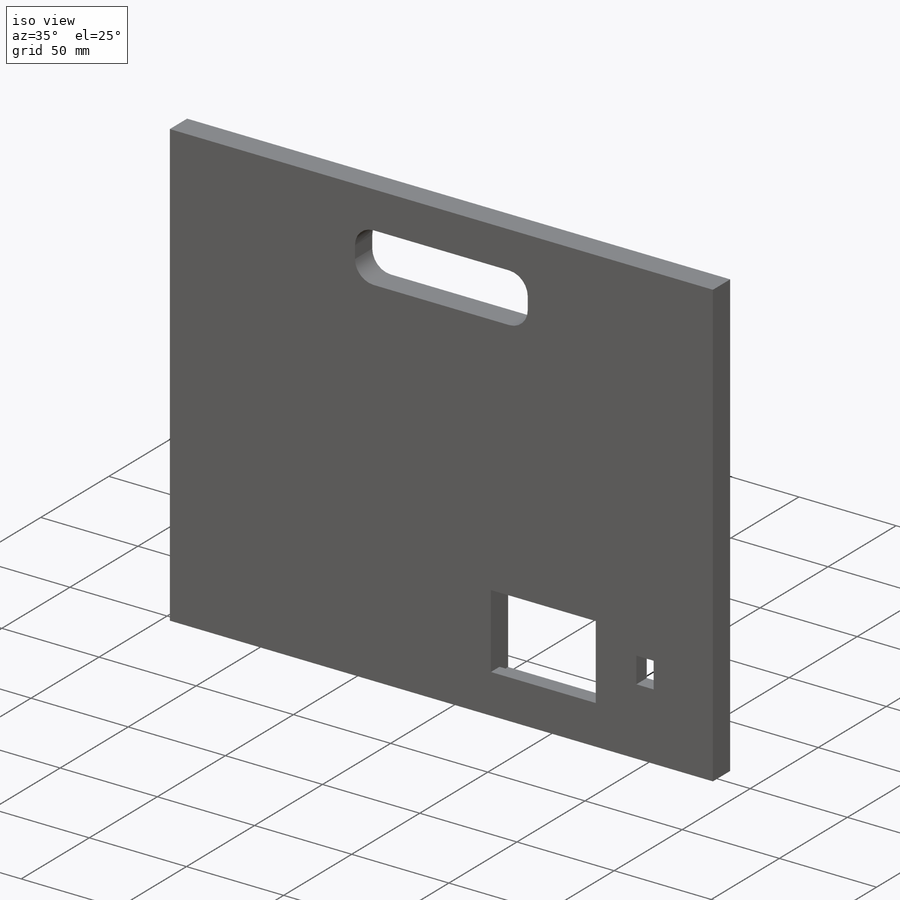
[diagram: iso view]
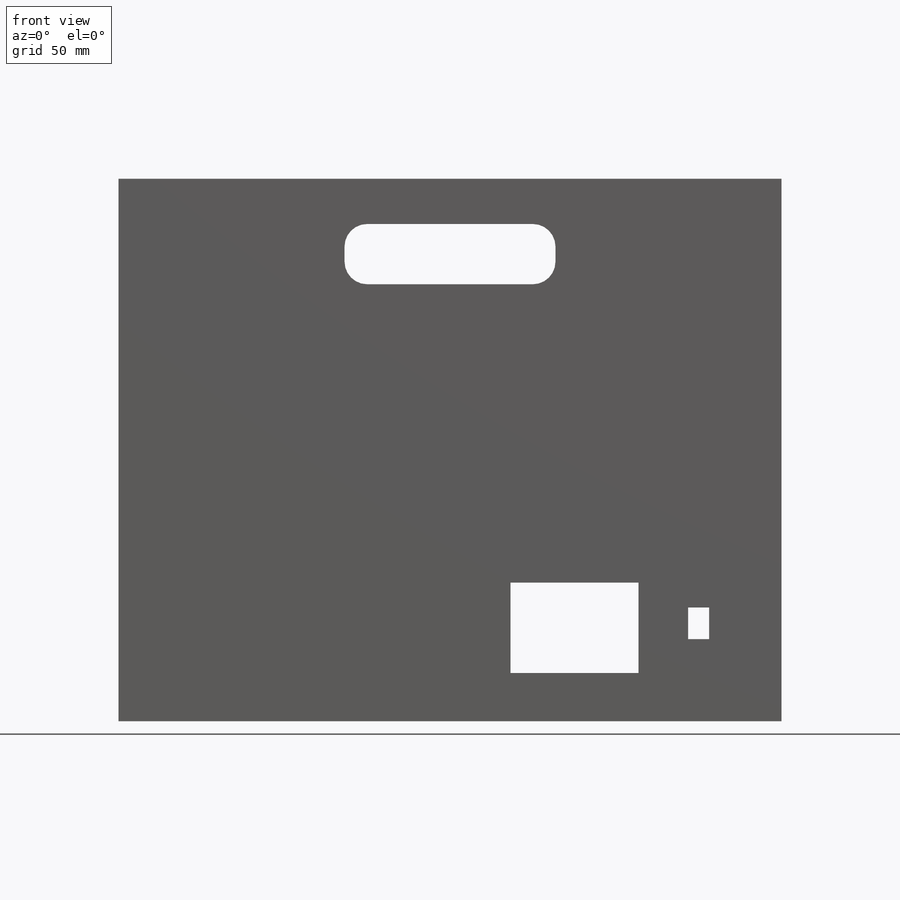
[diagram: front view]
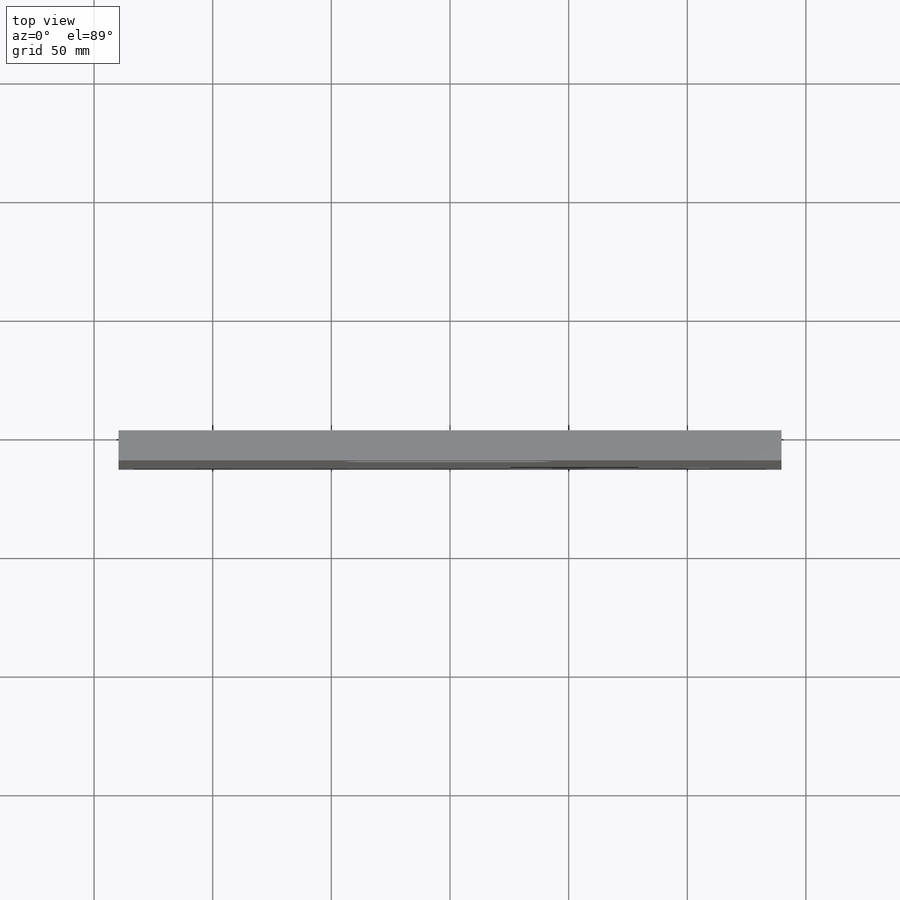
[diagram: top view]
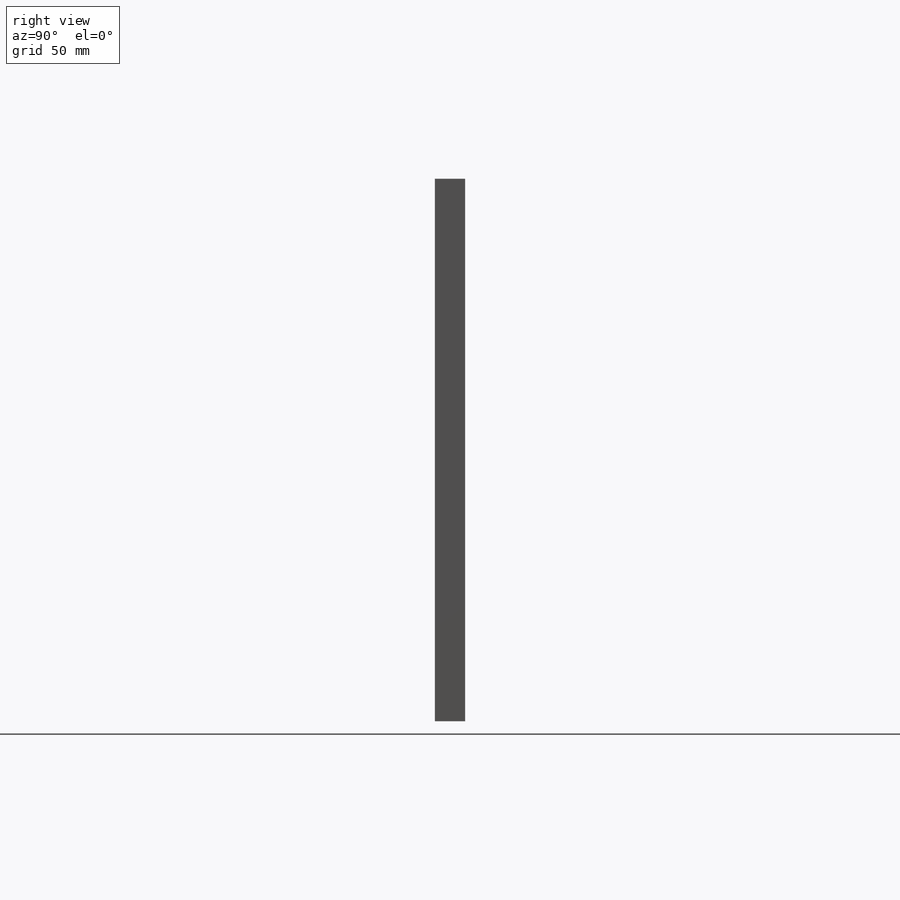
[diagram: right view]
SOLIDWORKS PART (.sldprt)
format: sldprt  version: not decoded by parser v0  size: 464,896 bytes
history: native  units: mm
features: sketch x6, cut_extrude x5, fillet x2, material x1, extrude x1 (+11 scaffold rows collapsed)
feature tree (26):
  scaffold x11  (default folders/planes/origin — collapsed)
  material  "Material <not specified>"
  sketch  "Sketch1"  dims[D1=228.6mm D2=279.4mm]
  extrude  "Boss-Extrude1"  Depth=12.7mm
  sketch  "Sketch2"  dims[c1.D8=~62.815264mm c1.D10=~63.705872mm c1.D11=9.525mm c1.D7=88.9mm c1.D1=44.45mm c1.D2=19.05mm c1.D3=88.9mm c1.D4=25.4mm c1.D5=146.05mm c1.D6=~72.953092mm c2.D6=90.0deg c3.D6=76.2mm c3.D7=28.575mm c3.D8=50.8mm c3.D9=38.1mm c3.D10=50.8mm c3.D5=139.7mm c4.D6=38.1mm c4.D7=82.55mm c4.D8=~30.006011mm c4.D10=~14.443989mm c4.D12=19.05mm c5.D8=76.2mm c5.D10=19.05mm c5.D13=25.4mm]
  cut_extrude  "Cut-Extrude3"  [1 undecoded]
  sketch  "Sketch4"  dims[c1.D1=25.4mm c1.D2=25.4mm c2.D1=25.4mm c2.D2=25.4mm c2.D3=19.05mm c2.D4=31.75mm c2.D5=31.75mm]
  cut_extrude  "Cut-Extrude4"  Depth=5.08mm
  fillet  "Fillet1"  Radius=8.255mm
  fillet  "Fillet2"  Radius=9.525mm
  sketch  "Sketch5"  dims[D1=13.335mm D2=8.89mm]
  cut_extrude  "Cut-Extrude5"  [1 undecoded]
  sketch  "Sketch7"  dims[D1=53.975mm D2=7.366mm D3=6.35mm D4=2.54mm]
  cut_extrude  "Cut-Extrude7"  [1 undecoded]
  sketch  "Sketch8"  dims[D1=2.54mm]
  cut_extrude  "Cut-Extrude8"  Depth=6.35mm
decode coverage: 11 of 14 modeling features carry decoded parameters
note: ~ marks probable driven/reference dimensions
note: 3 parameter values undecoded
summary: no parameter record found for 3 features
note: suppression state not decoded; provenance and decode notes live in map.json
